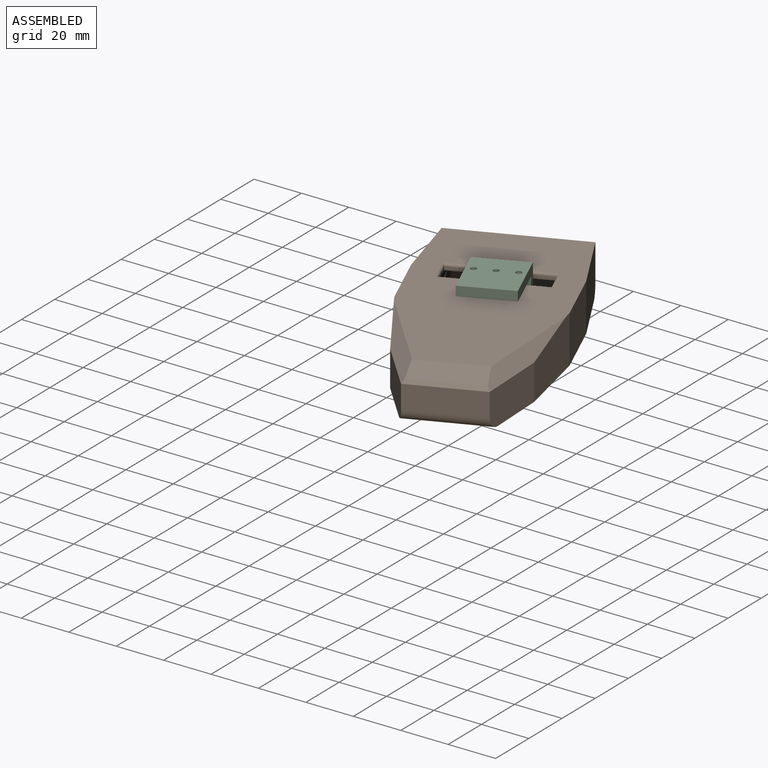
[diagram: assembled view]
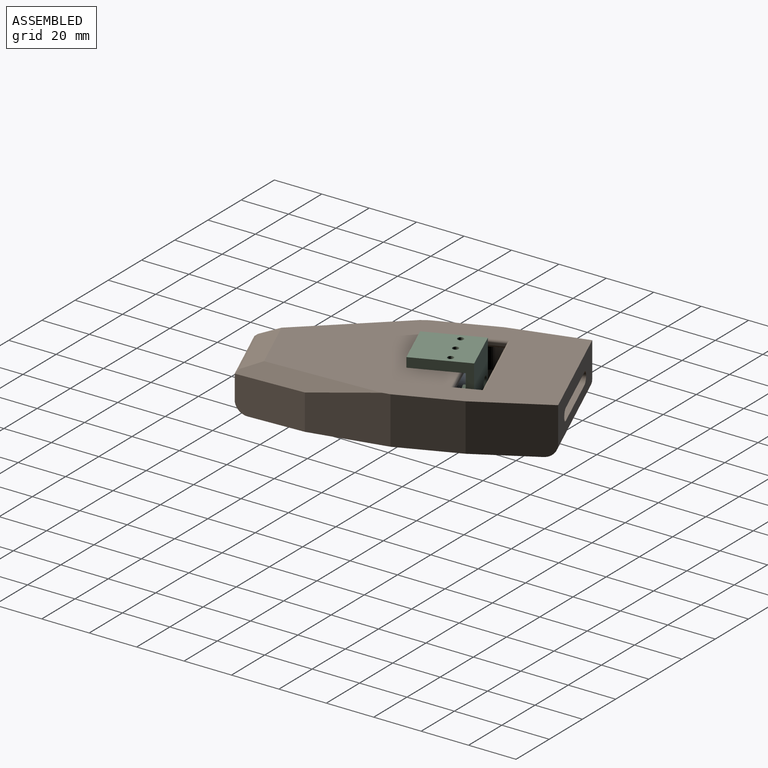
[diagram: assembled view, second angle]
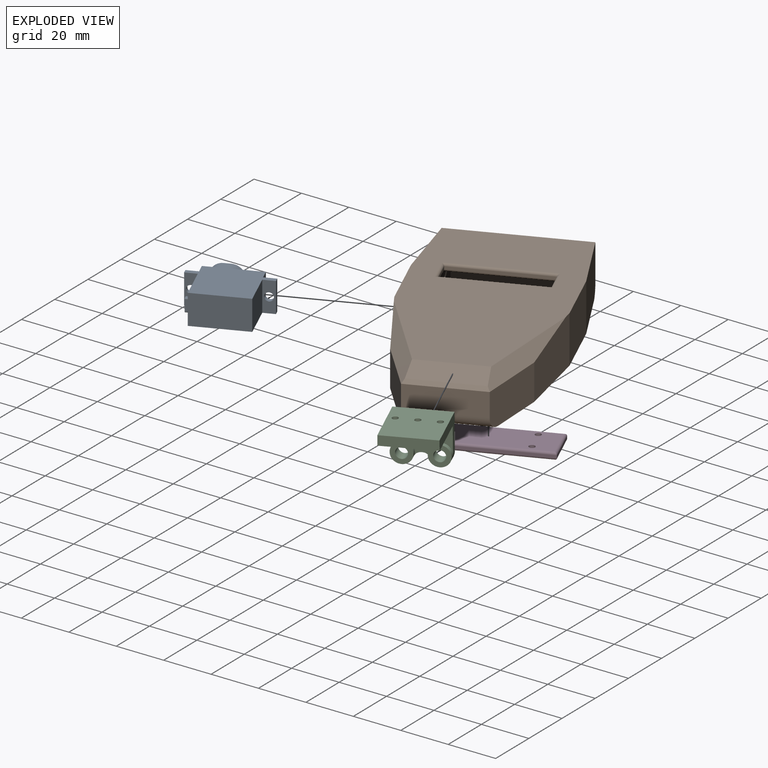
[diagram: exploded view]
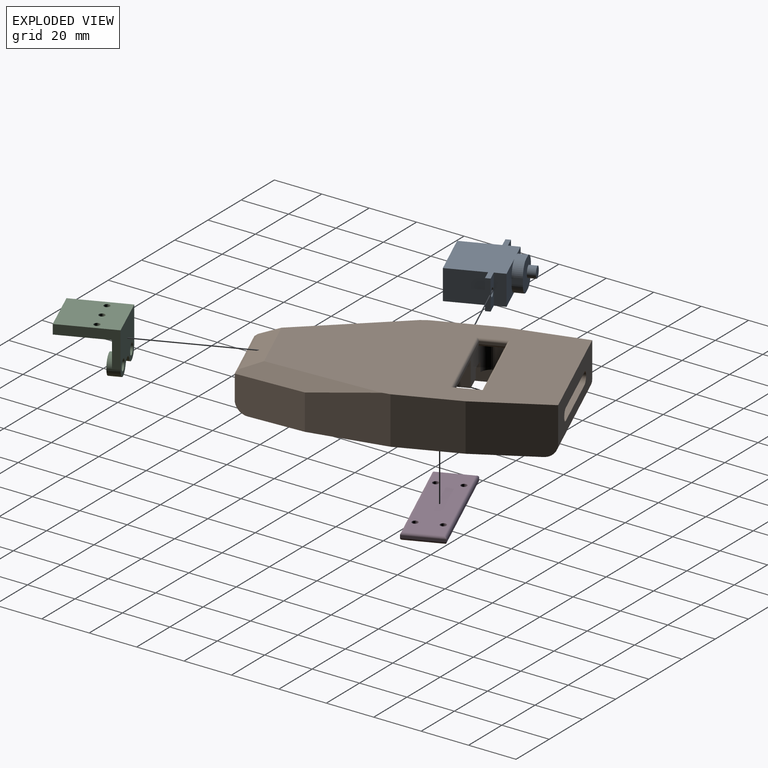
[diagram: exploded view, second angle]
ASSEMBLY  parts=4 mates=6
PART A: 35 faces, bbox 32.5x12.6x29.7 mm
  f0: plane 16x12.6mm, normal (-1,0,0), area 190.6mm2, adj f8,f9,f16,f17,f26,f27,f28,f29
  f1: plane 4x2.6mm, normal (1,0,0), area 10.4mm2, adj f2,f15,f23,f25
  f2: plane 12.81x12.6mm, normal (0,0,1), area 123.4mm2, adj f1,f3,f16,f17,f20,f22,f23,f24
  f3: plane 4x2.6mm, normal (-1,0,0), area 10.4mm2, adj f2,f4,f22,f24
  f4: plane 12.6x6.76mm, normal (0,0,1), area 32.8mm2, adj f3,f5,f16,f17,f22,f24
  f5: plane 12.6x4.5mm, normal (-1,0,0), area 56.7mm2, adj f4,f6,f16,f17
  f6: plane 12.6x4.85mm, normal (0,0,1), area 51.5mm2, adj f5,f7,f16,f17,f19
  f7: plane 12.6x2mm, normal (-1,0,0), area 25.2mm2, adj f6,f8,f16,f17
  f8: plane 12.6x4.85mm, normal (0,0,-1), area 51.5mm2, adj f0,f7,f16,f17,f19
  f9: plane 22.8x12.6mm, normal (0,0,-1), area 287.3mm2, adj f0,f10,f16,f17
  f10: plane 16x12.6mm, normal (1,0,0), area 201.6mm2, adj f9,f11,f16,f17
  f11: plane 12.6x4.85mm, normal (0,0,-1), area 51.5mm2, adj f10,f12,f16,f17,f18
  f12: plane 12.6x2mm, normal (1,0,0), area 25.2mm2, adj f11,f13,f16,f17
  f13: plane 12.6x5mm, normal (0,0,1), area 53.4mm2, adj f12,f14,f16,f17,f18
  f14: plane 12.6x4.5mm, normal (1,0,0), area 56.7mm2, adj f13,f15,f16,f17
  f15: plane 13.08x12.6mm, normal (0,0,1), area 112.6mm2, adj f1,f14,f16,f17,f23,f25
  f16: plane 32.5x26.5mm, normal (0,-1,0), area 543mm2, adj f0,f2,f4,f5,f6,f7,f8,f9
  f17: plane 32.5x26.5mm, normal (0,1,0), area 543mm2, adj f0,f2,f4,f5,f6,f7,f8,f9
  f18: cylinder r=1.75mm len=3.5mm, axis (0,0,1), area 22mm2, adj f11,f13
  f19: cylinder r=1.75mm len=3.5mm, axis (0,0,1), area 22mm2, adj f6,f8
  f20: cylinder r=2.3mm len=4.6mm, axis (0,0,-1), area 46.2mm2, adj f2,f21
  f21: plane 4.6x4.6mm, normal (0,0,1), area 16.6mm2, adj f20
  f22: cylinder r=5mm len=5mm, axis (0,0,-1), area 31.4mm2, adj f2,f3,f4,f17
  f23: cylinder r=5mm len=5mm, axis (0,0,1), area 31.4mm2, adj f1,f2,f15,f17
  f24: cylinder r=5mm len=5mm, axis (0,0,1), area 31.4mm2, adj f2,f3,f4,f16
  f25: cylinder r=5mm len=5mm, axis (0,0,-1), area 31.4mm2, adj f1,f2,f15,f16
  f26: plane 2x1mm, normal (0,1,0), area 2mm2, adj f0,f30,f31,f34
  f27: plane 4.6x2mm, normal (0,0,-1), area 9.2mm2, adj f0,f30,f31,f32
  f28: plane 2x1mm, normal (0,-1,0), area 2mm2, adj f0,f30,f32,f33
  f29: plane 4.6x2mm, normal (0,0,1), area 9.2mm2, adj f0,f30,f33,f34
  f30: plane 5.6x2mm, normal (-1,0,0), area 11mm2, adj f26,f27,f28,f29,f31,f32,f33,f34
  f31: cylinder r=0.5mm len=2mm, axis (1,0,0), area 1.6mm2, adj f0,f26,f27,f30
  f32: cylinder r=0.5mm len=2mm, axis (-1,0,0), area 1.6mm2, adj f0,f27,f28,f30
  f33: cylinder r=0.5mm len=2mm, axis (1,0,0), area 1.6mm2, adj f0,f28,f29,f30
  f34: cylinder r=0.5mm len=2mm, axis (-1,0,0), area 1.6mm2, adj f0,f26,f29,f30
PART B: 117 faces, bbox 62.1x117.1x20.1 mm
  f0: plane 8x7mm, normal (0,0,-1), area 51.1mm2, adj f36,f37,f38,f82,f104
  f1: plane 7x2.9mm, normal (0,0,-1), area 20.3mm2, adj f12,f46,f47,f102
  f2: plane 8x7mm, normal (0,0,-1), area 51.1mm2, adj f41,f42,f43,f80,f97
  f3: plane 12x2.9mm, normal (0,0,-1), area 25.3mm2, adj f12,f50,f94,f99
  f4: plane 12.1x11.5mm, normal (0,1,0), area 125.2mm2, adj f16,f48,f49,f92,f94,f100,f111
  f5: cylinder r=5mm len=12.1mm, axis (0,0,-1), area 86.4mm2, adj f13,f16,f40,f42,f96,f115
  f6: plane 56x55mm, normal (0,0,-1), area 2386.4mm2, adj f12,f13,f14,f15,f27,f29,f36,f37
  f7: plane 31.9x20mm, normal (-0.99,0.12,0), area 608.8mm2, adj f10,f17,f18,f26,f60,f61,f62,f63
  f8: plane 27.87x17.07mm, normal (0.99,-0.17,0), area 451.3mm2, adj f11,f12,f16,f17,f60,f61,f62,f63
  f9: plane 107x17.58mm, normal (0,0,-1), area 353mm2, adj f13,f15,f22,f23,f24,f25,f29,f30
  f10: plane 54.4x15mm, normal (0,1,0), area 646.4mm2, adj f7,f25,f26,f51,f52,f53,f54,f60
  f11: plane 46.4x16.9mm, normal (0,-1,0), area 614.5mm2, adj f8,f16,f30,f51,f52,f53,f54,f60
  f12: plane 26.7x17mm, normal (1,0,0), area 224mm2, adj f1,f3,f6,f8,f16,f17,f27,f46
  f13: plane 26.7x17mm, normal (-1,0,0), area 224mm2, adj f5,f6,f9,f16,f29,f30,f35,f37
  f14: plane 24.52x17.02mm, normal (0.93,0.38,0), area 296.9mm2, adj f6,f17,f27,f28,f39,f59,f84,f85
  f15: plane 24.52x17.02mm, normal (-0.93,0.38,0), area 296.9mm2, adj f6,f9,f28,f29,f39,f59,f84,f85
  f16: plane 56x35.5mm, normal (0,0,-1), area 1339.8mm2, adj f4,f5,f8,f11,f12,f13,f30,f42
  f17: plane 107x17.58mm, normal (0,0,-1), area 353mm2, adj f7,f8,f12,f14,f18,f19,f20,f27
  f18: plane 26.6x20mm, normal (-1,0,0), area 532mm2, adj f7,f17,f19,f26
  f19: plane 31.5x20mm, normal (-0.99,-0.17,0), area 567.9mm2, adj f17,f18,f20,f26,f57
  f20: plane 27x15mm, normal (-0.94,-0.34,0), area 425.1mm2, adj f17,f19,f21,f57,f59
  f21: plane 31.4x10mm, normal (0,-1,0), area 314mm2, adj f20,f22,f56,f59
  f22: plane 27x15mm, normal (0.94,-0.34,0), area 425.1mm2, adj f9,f21,f23,f55,f59
  f23: plane 31.5x20mm, normal (0.99,-0.17,0), area 567.9mm2, adj f9,f22,f24,f26,f55
  f24: plane 26.61x20mm, normal (1,0,0), area 532.2mm2, adj f9,f23,f25,f26
  f25: plane 31.89x20mm, normal (0.99,0.12,0), area 636.9mm2, adj f9,f10,f24,f26,f60
  f26: plane 107x62mm, normal (0,0,1), area 5212.6mm2, adj f7,f10,f18,f19,f23,f24,f25,f55
  f27: plane 31x17mm, normal (0.99,0.17,0), area 534.9mm2, adj f6,f12,f14,f17
  f28: plane 25.2x4.69mm, normal (0,1,0), area 118.2mm2, adj f14,f15,f59,f85
  f29: plane 31x17mm, normal (-0.99,0.17,0), area 534.9mm2, adj f6,f9,f13,f15
  f30: plane 27.8x17mm, normal (-0.99,-0.17,0), area 479.6mm2, adj f9,f11,f13,f16,f60
  f31: plane 10x1mm, normal (1,0,0), area 10mm2, adj f32,f34,f89,f93
  f32: plane 40x1mm, normal (0,1,0), area 40mm2, adj f31,f33,f88,f92
  f33: plane 10x1mm, normal (-1,0,0), area 10mm2, adj f32,f34,f86,f90
  f34: plane 40x1mm, normal (0,-1,0), area 40mm2, adj f31,f33,f87,f91
  f35: plane 7x2.9mm, normal (0,0,-1), area 20.3mm2, adj f13,f37,f38,f105
  f36: plane 12.1x7mm, normal (-1,0,0), area 84.7mm2, adj f0,f6,f37,f38
  f37: plane 16.5x12.1mm, normal (0,1,0), area 177.3mm2, adj f0,f6,f13,f35,f36,f104,f105,f112
  f38: plane 16.5x12.1mm, normal (0,-1,0), area 177.3mm2, adj f0,f6,f13,f35,f36,f104,f105,f113
  f39: plane 41.12x0.1mm, normal (0,1,0), area 4.1mm2, adj f6,f14,f15,f84
  f40: plane 12x2.9mm, normal (0,0,-1), area 25.3mm2, adj f5,f13,f43,f96
  f41: plane 12.1x7mm, normal (-1,0,0), area 84.7mm2, adj f2,f6,f42,f43
  f42: plane 12.1x11.5mm, normal (0,1,0), area 125.2mm2, adj f2,f5,f16,f41,f92,f97,f116
  f43: plane 16.5x12.1mm, normal (0,-1,0), area 177.3mm2, adj f2,f6,f13,f40,f41,f96,f97,f114
  f44: plane 8x7mm, normal (0,0,-1), area 51.1mm2, adj f45,f46,f47,f78,f101
  f45: plane 12.1x7mm, normal (1,0,0), area 84.7mm2, adj f6,f44,f46,f47
  f46: plane 16.5x12.1mm, normal (0,-1,0), area 177.3mm2, adj f1,f6,f12,f44,f45,f101,f102,f107
  f47: plane 16.5x12.1mm, normal (0,1,0), area 177.3mm2, adj f1,f6,f12,f44,f45,f101,f102,f108
  f48: plane 8x7mm, normal (0,0,-1), area 51.1mm2, adj f4,f49,f50,f76,f100
  f49: plane 12.1x7mm, normal (1,0,0), area 84.7mm2, adj f4,f6,f48,f50
  f50: plane 16.5x12.1mm, normal (0,-1,0), area 177.3mm2, adj f3,f6,f12,f48,f49,f99,f100,f109
  f51: plane 30x4mm, normal (0,0,-1), area 120mm2, adj f10,f11,f52,f54
  f52: cylinder r=2.5mm len=5mm, axis (0,1,0), area 31.4mm2, adj f10,f11,f51,f53
  f53: plane 30x4mm, normal (0,0,1), area 120mm2, adj f10,f11,f52,f54
  f54: cylinder r=2.5mm len=5mm, axis (0,1,0), area 31.4mm2, adj f10,f11,f51,f53
  f55: plane 55.24x16.42mm, normal (0.66,-0.24,0.71), area 277.2mm2, adj f22,f23,f26,f56,f58
  f56: plane 31.4x1.46mm, normal (0,-0.71,0.71), area 62.9mm2, adj f21,f55,f57,f58
  f57: plane 55.24x16.42mm, normal (-0.66,-0.24,0.71), area 277.2mm2, adj f19,f20,f26,f56,f58
  f58: plane 29.35x8.54mm, normal (0,-0.38,0.92), area 265mm2, adj f26,f55,f56,f57
  f59: cylinder r=5mm len=35.03mm, axis (1,0,0), area 203.4mm2, adj f9,f14,f15,f17,f20,f21,f22,f28
  f60: cylinder r=5mm len=55.59mm, axis (-1,0,0), area 383.8mm2, adj f7,f8,f9,f10,f11,f17,f25,f30
  f61: extruded ~4.31x3.04mm, area 10.6mm2, adj f7,f8,f62,f75
  f62: plane 3.93x1.13mm, normal (0.11,0.89,0.44), area 4.9mm2, adj f7,f8,f61,f63
  f63: extruded ~4.37x3.58mm, area 12.7mm2, adj f7,f8,f62,f64
  f64: extruded ~4.5x3.39mm, area 12.5mm2, adj f7,f8,f63,f65
  f65: extruded ~4.48x2.39mm, area 12mm2, adj f7,f8,f64,f66
  f66: extruded ~4.36x3.08mm, area 13.7mm2, adj f7,f8,f65,f67
  f67: extruded ~4.45x4.33mm, area 19.9mm2, adj f7,f8,f66,f68
  f68: extruded ~4.67x4.35mm, area 17.8mm2, adj f7,f8,f67,f69
  f69: extruded ~4.36x3.37mm, area 11.8mm2, adj f7,f8,f68,f70
  f70: plane 3.86x1.16mm, normal (0.12,0.99,0), area 4.5mm2, adj f7,f8,f69,f71
  f71: extruded ~4.32x3.17mm, area 10.9mm2, adj f7,f8,f70,f72
  f72: extruded ~4.51x3.46mm, area 13.7mm2, adj f7,f8,f71,f73
  f73: extruded ~4.34x3.45mm, area 15.5mm2, adj f7,f8,f72,f74
  f74: extruded ~4.34x3.42mm, area 15.5mm2, adj f7,f8,f73,f75
  f75: extruded ~4.5x3.43mm, area 13.6mm2, adj f7,f8,f61,f74
  f76: cylinder r=1.25mm len=12mm, axis (0,0,-1), area 94.2mm2, adj f48,f77
  f77: plane 2.5x2.5mm, normal (0,0,-1), area 4.9mm2, adj f76
  f78: cylinder r=1.25mm len=12mm, axis (0,0,-1), area 94.2mm2, adj f44,f79
  f79: plane 2.5x2.5mm, normal (0,0,-1), area 4.9mm2, adj f78
  f80: cylinder r=1.25mm len=12mm, axis (0,0,-1), area 94.2mm2, adj f2,f81
  f81: plane 2.5x2.5mm, normal (0,0,-1), area 4.9mm2, adj f80
  f82: cylinder r=1.25mm len=12mm, axis (0,0,-1), area 94.2mm2, adj f0,f83
  f83: plane 2.5x2.5mm, normal (0,0,-1), area 4.9mm2, adj f82
  f84: plane 41.12x6.34mm, normal (0,0.71,-0.71), area 345.6mm2, adj f14,f15,f39,f85
  f85: plane 35.94x13.16mm, normal (0,0.38,-0.92), area 435.3mm2, adj f14,f15,f28,f84
  f86: cylinder r=1mm len=12mm, axis (0,-1,0), area 16.8mm2, adj f26,f33,f87,f88
  f87: cylinder r=1mm len=42mm, axis (1,0,0), area 64mm2, adj f26,f34,f86,f89
  f88: cylinder r=1mm len=42mm, axis (-1,0,0), area 64mm2, adj f26,f32,f86,f89
  f89: cylinder r=1mm len=12mm, axis (0,1,0), area 16.8mm2, adj f26,f31,f87,f88
  f90: cylinder r=1mm len=12mm, axis (0,1,0), area 16.8mm2, adj f16,f33,f91,f92
  f91: cylinder r=1mm len=42mm, axis (-1,0,0), area 64mm2, adj f16,f34,f90,f93
  f92: cylinder r=1mm len=42mm, axis (1,0,0), area 64mm2, adj f4,f6,f32,f42,f90,f93
  f93: cylinder r=1mm len=12mm, axis (0,-1,0), area 16.8mm2, adj f16,f31,f91,f92
  f94: cylinder r=5mm len=12.1mm, axis (0,0,1), area 86.4mm2, adj f3,f4,f12,f16,f99,f110
  f95: plane 5.6x5.38mm, normal (0,0,-1), area 28.3mm2, adj f96,f97,f114,f115,f116
  f96: plane 7.46x4mm, normal (-1,0,0), area 22.8mm2, adj f5,f40,f43,f95,f114,f115
  f97: plane 7x4mm, normal (1,0,0), area 21.4mm2, adj f2,f42,f43,f95,f114,f116
  f98: plane 5.6x5.38mm, normal (0,0,-1), area 28.3mm2, adj f99,f100,f109,f110,f111
  f99: plane 7.46x4mm, normal (1,0,0), area 22.8mm2, adj f3,f50,f94,f98,f109,f110
  f100: plane 7x4mm, normal (-1,0,0), area 21.4mm2, adj f4,f48,f50,f98,f109,f111
  f101: plane 7x4mm, normal (-1,0,0), area 21.4mm2, adj f44,f46,f47,f103,f107,f108
  f102: plane 7x4mm, normal (1,0,0), area 21.4mm2, adj f1,f46,f47,f103,f107,f108
  f103: plane 5.6x5mm, normal (0,0,-1), area 28mm2, adj f101,f102,f107,f108
  f104: plane 7x4mm, normal (1,0,0), area 21.4mm2, adj f0,f37,f38,f106,f112,f113
  f105: plane 7x4mm, normal (-1,0,0), area 21.4mm2, adj f35,f37,f38,f106,f112,f113
  f106: plane 5.6x5mm, normal (0,0,-1), area 28mm2, adj f104,f105,f112,f113
  f107: cylinder r=1mm len=5.6mm, axis (1,0,0), area 8.8mm2, adj f46,f101,f102,f103
  f108: cylinder r=1mm len=5.6mm, axis (-1,0,0), area 8.8mm2, adj f47,f101,f102,f103
  f109: cylinder r=1mm len=5.6mm, axis (1,0,0), area 8.8mm2, adj f50,f98,f99,f100
  f110: torus R=6mm, axis (0,0,-1), area 3.4mm2, adj f94,f98,f99,f111
  f111: cylinder r=1mm len=3.5mm, axis (-1,0,0), area 5.5mm2, adj f4,f98,f100,f110
  f112: cylinder r=1mm len=5.6mm, axis (-1,0,0), area 8.8mm2, adj f37,f104,f105,f106
  f113: cylinder r=1mm len=5.6mm, axis (1,0,0), area 8.8mm2, adj f38,f104,f105,f106
  f114: cylinder r=1mm len=5.6mm, axis (1,0,0), area 8.8mm2, adj f43,f95,f96,f97
  f115: torus R=6mm, axis (0,0,-1), area 3.4mm2, adj f5,f95,f96,f116
  f116: cylinder r=1mm len=3.5mm, axis (-1,0,0), area 5.5mm2, adj f42,f95,f97,f115
PART C: 25 faces, bbox 19.3x22x24 mm
  f0: plane 24x22mm, normal (1,0,0), area 513.3mm2, adj f1,f5,f6,f7,f14,f15,f16
  f1: plane 22x19.25mm, normal (0,0,1), area 355.3mm2, adj f0,f2,f6,f7,f8,f10,f12,f13
  f2: plane 3x0.3mm, normal (-1,0,0), area 0.9mm2, adj f1,f3,f17,f18
  f3: plane 22x12.76mm, normal (0,0,-1), area 187.1mm2, adj f2,f4,f6,f7,f8,f10,f17,f18
  f4: plane 22x21mm, normal (-1,0,0), area 414.3mm2, adj f3,f5,f6,f7,f19,f21,f23
  f5: plane 22x4mm, normal (0,0,-1), area 88mm2, adj f0,f4,f6,f7
  f6: plane 24x15mm, normal (0,-1,0), area 129mm2, adj f0,f1,f3,f4,f5,f8
  f7: plane 24x15mm, normal (0,1,0), area 129mm2, adj f0,f1,f3,f4,f5,f10
  f8: cylinder r=4.25mm len=8.5mm, axis (0,0,1), area 88mm2, adj f1,f3,f6,f9,f18
  f9: plane 8.5x8.5mm, normal (0,0,-1), area 40.1mm2, adj f8,f13
  f10: cylinder r=4.25mm len=8.5mm, axis (0,0,1), area 88mm2, adj f1,f3,f7,f11,f17
  f11: plane 8.5x8.5mm, normal (0,0,-1), area 40.1mm2, adj f10,f12
  f12: cylinder r=2.3mm len=5mm, axis (0,0,1), area 72.3mm2, adj f1,f11
  f13: cylinder r=2.3mm len=5mm, axis (0,0,1), area 72.3mm2, adj f1,f9
  f14: cylinder r=1.25mm len=3mm, axis (1,0,0), area 23.6mm2, adj f0,f24
  f15: cylinder r=1.25mm len=3mm, axis (1,0,0), area 23.6mm2, adj f0,f22
  f16: cylinder r=1.25mm len=3mm, axis (1,0,0), area 23.6mm2, adj f0,f20
  f17: cylinder r=3mm len=3mm, axis (0,0,1), area 10.3mm2, adj f1,f2,f3,f10
  f18: cylinder r=3mm len=3mm, axis (0,0,1), area 10.3mm2, adj f1,f2,f3,f8
  f19: cylinder r=2.25mm len=4.5mm, axis (-1,0,0), area 14.1mm2, adj f4,f20
  f20: plane 4.5x4.5mm, normal (-1,0,0), area 11mm2, adj f16,f19
  f21: cylinder r=2.25mm len=4.5mm, axis (-1,0,0), area 14.1mm2, adj f4,f22
  f22: plane 4.5x4.5mm, normal (-1,0,0), area 11mm2, adj f15,f21
  f23: cylinder r=2.25mm len=4.5mm, axis (-1,0,0), area 14.1mm2, adj f4,f24
  f24: plane 4.5x4.5mm, normal (-1,0,0), area 11mm2, adj f14,f23
PART D: 22 faces, bbox 16.5x52x3 mm
  f0: plane 16.5x1mm, normal (0,1,0), area 16.5mm2, adj f1,f3,f12,f19
  f1: plane 52x1mm, normal (-1,0,0), area 52mm2, adj f0,f2,f10,f17
  f2: plane 16.5x1mm, normal (0,-1,0), area 16.5mm2, adj f1,f3,f11,f18
  f3: plane 52x1mm, normal (1,0,0), area 52mm2, adj f0,f2,f13,f20
  f4: cylinder r=1.25mm len=2.5mm, axis (0,0,-1), area 15.7mm2, adj f9,f16
  f5: cylinder r=1.25mm len=2.5mm, axis (0,0,-1), area 15.7mm2, adj f9,f15
  f6: cylinder r=1.25mm len=2.5mm, axis (0,0,-1), area 15.7mm2, adj f9,f14
  f7: cylinder r=1.25mm len=2.5mm, axis (0,0,-1), area 15.7mm2, adj f9,f21
  f8: plane 50x14.5mm, normal (0,0,1), area 661.4mm2, adj f14,f15,f16,f17,f18,f19,f20,f21
  f9: plane 50x14.5mm, normal (0,0,-1), area 705.4mm2, adj f4,f5,f6,f7,f10,f11,f12,f13
  f10: cylinder r=1mm len=52mm, axis (0,-1,0), area 80.5mm2, adj f1,f9,f11,f12
  f11: cylinder r=1mm len=16.5mm, axis (1,0,0), area 24.8mm2, adj f2,f9,f10,f13
  f12: cylinder r=1mm len=16.5mm, axis (-1,0,0), area 24.8mm2, adj f0,f9,f10,f13
  f13: cylinder r=1mm len=52mm, axis (0,1,0), area 80.5mm2, adj f3,f9,f11,f12
  f14: torus R=2.25mm, axis (0,0,1), area 15.9mm2, adj f6,f8
  f15: torus R=2.25mm, axis (0,0,1), area 15.9mm2, adj f5,f8
  f16: torus R=2.25mm, axis (0,0,1), area 15.9mm2, adj f4,f8
  f17: cylinder r=1mm len=52mm, axis (0,1,0), area 80.5mm2, adj f1,f8,f18,f19
  f18: cylinder r=1mm len=16.5mm, axis (-1,0,0), area 24.8mm2, adj f2,f8,f17,f20
  f19: cylinder r=1mm len=16.5mm, axis (1,0,0), area 24.8mm2, adj f0,f8,f17,f20
  f20: cylinder r=1mm len=52mm, axis (0,-1,0), area 80.5mm2, adj f3,f8,f18,f19
  f21: torus R=2.25mm, axis (0,0,1), area 15.9mm2, adj f7,f8
PLACE A rot(axis=(-0.96,-0.19,0.19),92.2deg) t=(-10.59,-74.42,-15.84)mm
PLACE B rot(axis=(0,0,1),22.5deg) t=(-2.58,-64.6,-10.24)mm fixed
PLACE C rot(axis=(-0.48,-0.73,-0.49),108.2deg) t=(8.3,-58.46,1.6)mm
PLACE D rot(axis=(-0.56,-0.83,0),180deg) t=(-27.46,-72.48,-15.34)mm
MATE fastened D.f7 <-> B.f82  axis (0,0,1) through (10.55,-53.2,-15.34)mm
MATE planar A.f14 <-> B.f41  axis (0.92,0.38,0) through (2.58,-47.03,-9.54)mm
MATE revolute C.f8 <-> A.f20  axis (0.38,-0.92,0) through (-15.29,-47.68,-9.54)mm
MATE planar A.f6 <-> B.f50  axis (-0.38,0.92,0) through (-17.48,-57.79,-9.54)mm
MATE planar A.f16 <-> B.f6  axis (0,0,1) through (-4.62,-59.25,-3.24)mm
MATE revolute D.f4 <-> B.f78  axis (0,0,1) through (-19.93,-65.84,-15.34)mm
